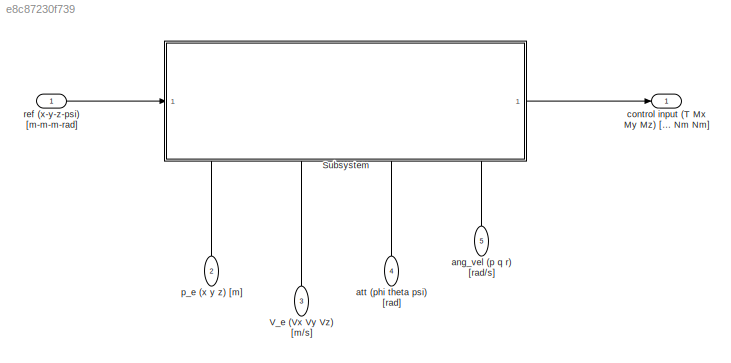
MODEL slx_e8c87230f739
KIND model
CONFIG AbsTol = auto
CONFIG EnableMultiTasking = off
CONFIG FixedStep = auto
CONFIG MaxStep = auto
CONFIG MinStep = auto
CONFIG RelTol = 1e-3
CONFIG SampleTimeConstraint = Unconstrained
CONFIG SolverName = VariableStepAuto
CONFIG StartTime = 0.0
CONFIG StopTime = 10.0
BLOCK [SubSystem] Subsystem
  PortSchema = {"entries":[{"content":{"sides":[{"content":{"connectorIds":["In1"]},"type":"ConnectorPlacement.EquallySpacedRectSide","uuid":"f752c7f8-b83e-4308-8655-52e5c72cb701"},{"content":{"connectorIds":["Out1"],"side":"RIGHT"},"type":"ConnectorPlacement.EquallySpacedRectSide","uuid":"74a5b19f-ee33-48e3-9b00-74ec74f49d4f"},{"content":{"side":"TOP"},"type":"ConnectorPlacement.EquallySpacedRectSide","uuid":"5...<+389ch>
  ReferencedSubsystem = control_law
  ShowPortLabels = none
BLOCK [Inport] V_e (Vx Vy Vz) [m//s]
  NameLocation = right
  Port = 3
BLOCK [Inport] ang_vel (p q r) [rad//s]
  NameLocation = right
  Port = 5
BLOCK [Inport] att (phi theta psi) [rad]
  NameLocation = right
  Port = 4
BLOCK [Outport] control input (T Mx My Mz) [N Nm Nm Nm]
BLOCK [Inport] p_e (x y z) [m]
  NameLocation = right
  Port = 2
BLOCK [Inport] ref (x-y-z-psi) [m-m-m-rad]
LINE Subsystem:1 -> control input (T Mx My Mz) [N Nm Nm Nm]:1
LINE V_e (Vx Vy Vz) [m//s]:1 -> Subsystem:3
LINE ang_vel (p q r) [rad//s]:1 -> Subsystem:5
LINE att (phi theta psi) [rad]:1 -> Subsystem:4
LINE p_e (x y z) [m]:1 -> Subsystem:2
LINE ref (x-y-z-psi) [m-m-m-rad]:1 -> Subsystem:1
